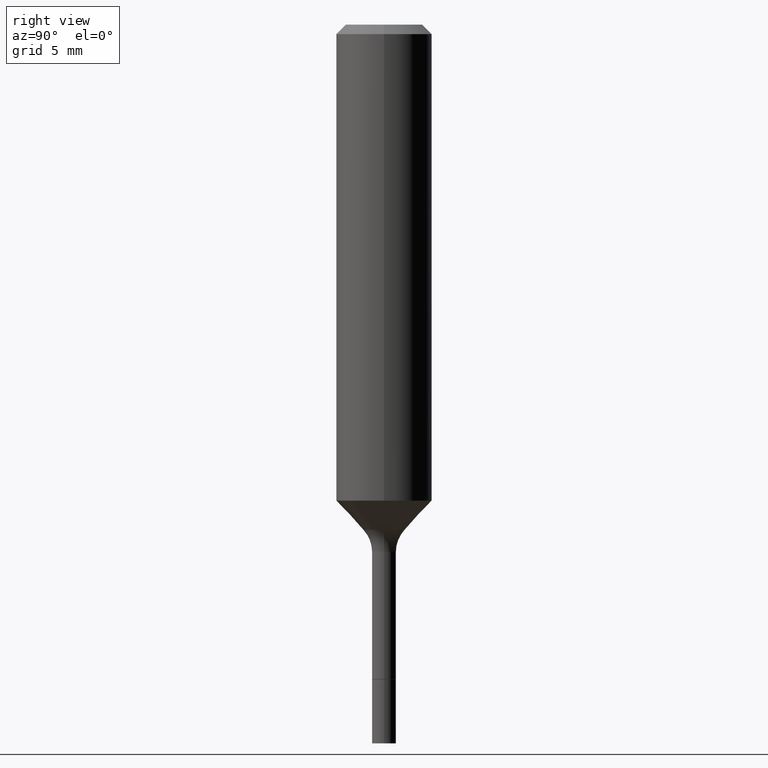
[diagram: clean part render]
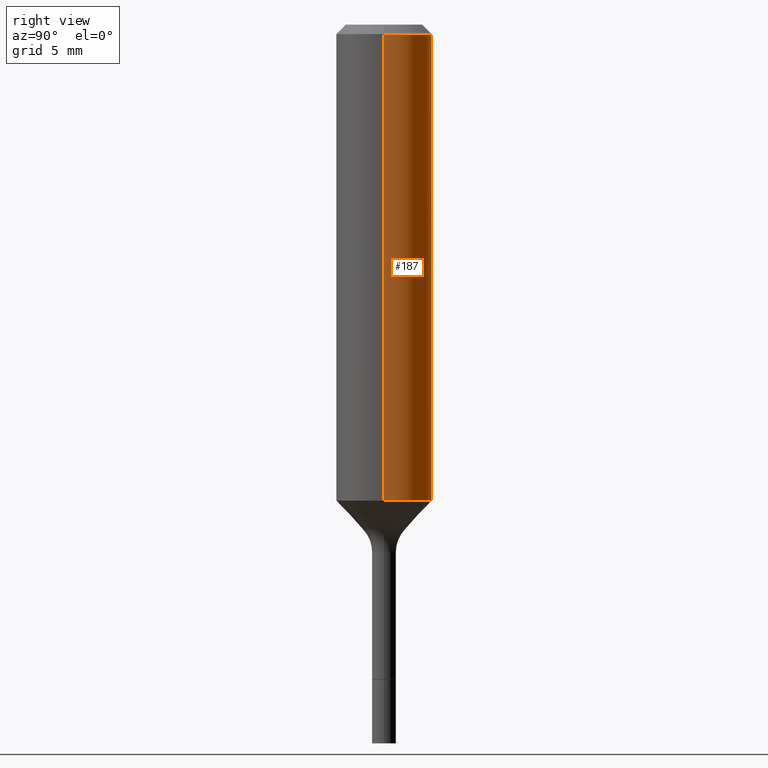
[diagram: same view with one face highlighted and labeled with its STEP entity id]
A machine part, right view. The second image highlights one B-rep face of the part: STEP entity #187.
In plain terms, the highlighted cylindrical surface (partial cylindrical patch) has radius 2.9997 mm, axis along (-0, 0, 1).
Its self-contained STEP definition (entity closure, byte-faithful):
#14 = EDGE_CURVE ( 'NONE', #421, #333, #393, .T. ) ;
#23 = CARTESIAN_POINT ( 'NONE',  ( 0.000000000000000000, 0.000000000000000000, 0.000000000000000000 ) ) ;
#30 = CARTESIAN_POINT ( 'NONE',  ( 5.776197320209326656E-31, -8.246878922347558061E-17, -0.02362000000000013741 ) ) ;
#39 = CARTESIAN_POINT ( 'NONE',  ( -0.1181000000000000660, 8.391509709326787887E-16, -5.809262341591047287E-30 ) ) ;
#55 = VERTEX_POINT ( 'NONE', #309 ) ;
#98 = FACE_OUTER_BOUND ( 'NONE', #259, .T. ) ;
#105 = CARTESIAN_POINT ( 'NONE',  ( 2.869094708468846094E-29, -4.096306854806887117E-15, -1.173228912678119018 ) ) ;
#108 = DIRECTION ( 'NONE',  ( -2.445468806185136597E-29, 3.491481338843145583E-15, 1.000000000000000000 ) ) ;
#146 = ORIENTED_EDGE ( 'NONE', *, *, #14, .T. ) ;
#180 = AXIS2_PLACEMENT_3D ( 'NONE', #105, #108, #346 ) ;
#183 = DIRECTION ( 'NONE',  ( -2.445468806185136597E-29, 3.491481338843145583E-15, 1.000000000000000000 ) ) ;
#185 = DIRECTION ( 'NONE',  ( -2.445468806185136597E-29, 3.491481338843145583E-15, 1.000000000000000000 ) ) ;
#187 = ADVANCED_FACE ( 'NONE', ( #98 ), #215, .T. ) ;
#205 = EDGE_CURVE ( 'NONE', #55, #421, #446, .T. ) ;
#215 = CYLINDRICAL_SURFACE ( 'NONE', #372, 0.1181000000000000660 ) ;
#226 = DIRECTION ( 'NONE',  ( -2.445468806185136877E-29, 3.491481338843145188E-15, 1.000000000000000000 ) ) ;
#252 = ORIENTED_EDGE ( 'NONE', *, *, #315, .F. ) ;
#259 = EDGE_LOOP ( 'NONE', ( #425, #146, #298, #252 ) ) ;
#270 = CARTESIAN_POINT ( 'NONE',  ( 0.1180999999999999966, -9.071566814582237199E-16, -0.02362000000000013741 ) ) ;
#273 = VECTOR ( 'NONE', #494, 39.37007874015748143 ) ;
#298 = ORIENTED_EDGE ( 'NONE', *, *, #377, .F. ) ;
#309 = CARTESIAN_POINT ( 'NONE',  ( 0.1181000000000001354, -4.920994747041635380E-15, -1.173228912678119018 ) ) ;
#315 = EDGE_CURVE ( 'NONE', #55, #467, #404, .T. ) ;
#324 = CARTESIAN_POINT ( 'NONE',  ( 0.1181000000000000660, -8.246878922347485584E-16, 5.758764772215003944E-30 ) ) ;
#333 = VERTEX_POINT ( 'NONE', #340 ) ;
#335 = DIRECTION ( 'NONE',  ( 1.000000000000000000, -6.982962677686266711E-15, 4.876176775795936353E-29 ) ) ;
#337 = DIRECTION ( 'NONE',  ( 1.000000000000000000, -6.982962677686266711E-15, 0.000000000000000000 ) ) ;
#339 = VECTOR ( 'NONE', #226, 39.37007874015748143 ) ;
#340 = CARTESIAN_POINT ( 'NONE',  ( -0.1180999999999999966, -1.250236851082501907E-15, -0.02362000000000013741 ) ) ;
#346 = DIRECTION ( 'NONE',  ( 1.000000000000000000, -6.982962677686269077E-15, 0.000000000000000000 ) ) ;
#372 = AXIS2_PLACEMENT_3D ( 'NONE', #23, #183, #335 ) ;
#377 = EDGE_CURVE ( 'NONE', #467, #333, #470, .T. ) ;
#393 = LINE ( 'NONE', #39, #339 ) ;
#404 = LINE ( 'NONE', #324, #273 ) ;
#421 = VERTEX_POINT ( 'NONE', #506 ) ;
#425 = ORIENTED_EDGE ( 'NONE', *, *, #205, .T. ) ;
#446 = CIRCLE ( 'NONE', #180, 0.1181000000000001354 ) ;
#464 = AXIS2_PLACEMENT_3D ( 'NONE', #30, #185, #337 ) ;
#467 = VERTEX_POINT ( 'NONE', #270 ) ;
#470 = CIRCLE ( 'NONE', #464, 0.1180999999999999966 ) ;
#494 = DIRECTION ( 'NONE',  ( -2.445468806185136877E-29, 3.491481338843145188E-15, 1.000000000000000000 ) ) ;
#506 = CARTESIAN_POINT ( 'NONE',  ( -0.1181000000000001354, -3.257155883874207737E-15, -1.173228912678119018 ) ) ;